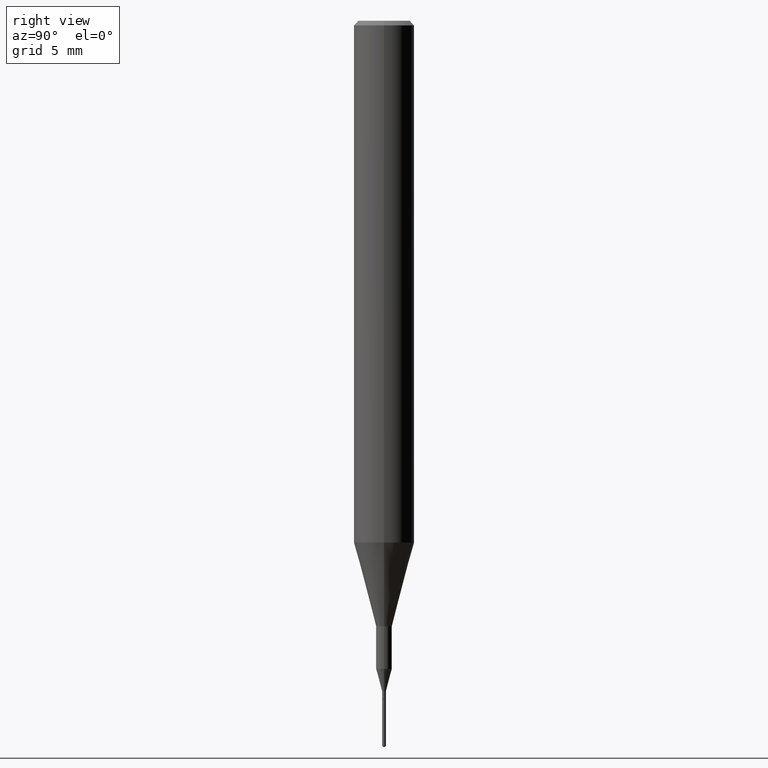
[diagram: clean part render]
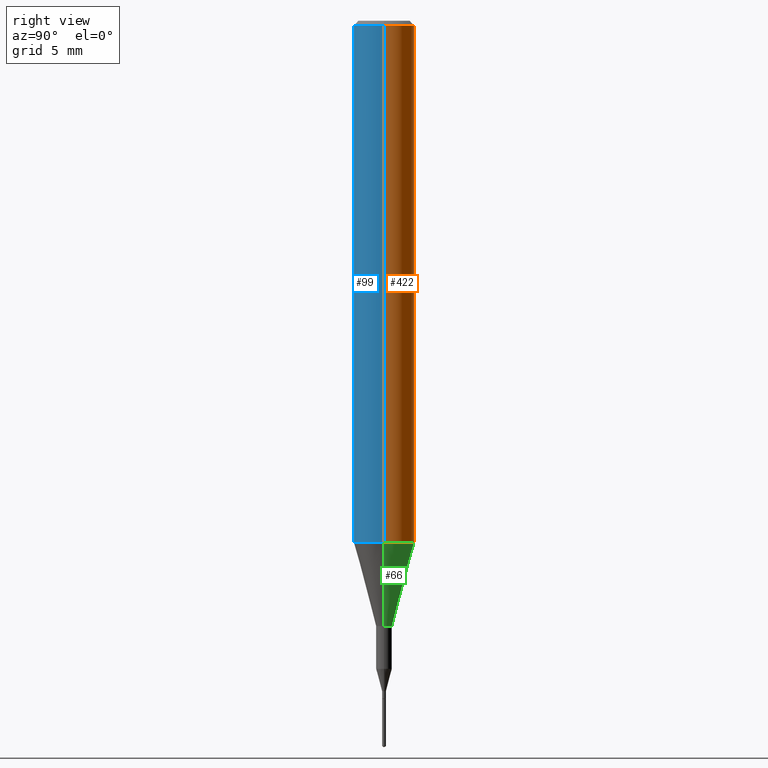
[diagram: same view with three faces highlighted in distinct colors, each labeled with its STEP entity id]
A machine part, right view with three faces highlighted in distinct colors.
Their STEP definitions:

[orange] entity #422 — the highlighted cylindrical surface (edge-blend (fillet) strip) has radius 1.5875 mm, axis along (-0, 0, 1).
#1 = VECTOR ( 'NONE', #546, 39.37007874015748143 ) ;
#2 = AXIS2_PLACEMENT_3D ( 'NONE', #293, #62, #243 ) ;
#9 = ORIENTED_EDGE ( 'NONE', *, *, #288, .T. ) ;
#16 = CARTESIAN_POINT ( 'NONE',  ( 2.292627005798581937E-31, -3.273263755165472033E-17, -0.009375000000000067307 ) ) ;
#38 = EDGE_CURVE ( 'NONE', #427, #586, #182, .T. ) ;
#52 = CARTESIAN_POINT ( 'NONE',  ( 0.06250000000000000000, -4.691678049070464390E-16, -0.009375000000000067307 ) ) ;
#62 = DIRECTION ( 'NONE',  ( -2.445468806185136597E-29, 3.491481338843145583E-15, 1.000000000000000000 ) ) ;
#73 = ORIENTED_EDGE ( 'NONE', *, *, #143, .F. ) ;
#95 = CYLINDRICAL_SURFACE ( 'NONE', #2, 0.06250000000000006939 ) ;
#109 = VERTEX_POINT ( 'NONE', #486 ) ;
#123 = CARTESIAN_POINT ( 'NONE',  ( -0.06250000000000006939, 4.440892098500631092E-16, -3.074334431409319267E-30 ) ) ;
#127 = CIRCLE ( 'NONE', #166, 0.06250000000000000000 ) ;
#141 = LINE ( 'NONE', #588, #330 ) ;
#143 = EDGE_CURVE ( 'NONE', #477, #586, #127, .T. ) ;
#146 = DIRECTION ( 'NONE',  ( 1.000000000000000000, -6.982962677686264344E-15, 0.000000000000000000 ) ) ;
#166 = AXIS2_PLACEMENT_3D ( 'NONE', #16, #302, #476 ) ;
#182 = LINE ( 'NONE', #123, #1 ) ;
#243 = DIRECTION ( 'NONE',  ( 1.000000000000000000, -6.982962677686266711E-15, 4.876176775795935793E-29 ) ) ;
#288 = EDGE_CURVE ( 'NONE', #109, #427, #572, .T. ) ;
#293 = CARTESIAN_POINT ( 'NONE',  ( 0.000000000000000000, 0.000000000000000000, 0.000000000000000000 ) ) ;
#296 = CARTESIAN_POINT ( 'NONE',  ( -0.06250000000000000000, -1.453125275228401137E-15, -0.009375000000000067307 ) ) ;
#302 = DIRECTION ( 'NONE',  ( -2.445468806185136597E-29, 3.491481338843145583E-15, 1.000000000000000000 ) ) ;
#311 = ORIENTED_EDGE ( 'NONE', *, *, #38, .T. ) ;
#326 = AXIS2_PLACEMENT_3D ( 'NONE', #396, #464, #146 ) ;
#330 = VECTOR ( 'NONE', #463, 39.37007874015748143 ) ;
#396 = CARTESIAN_POINT ( 'NONE',  ( 2.634730117954813298E-29, -3.761696332605275695E-15, -1.077392650149939346 ) ) ;
#419 = CARTESIAN_POINT ( 'NONE',  ( -0.06250000000000012490, -3.317607122755211895E-15, -1.077392650149939346 ) ) ;
#422 = ADVANCED_FACE ( 'NONE', ( #471 ), #95, .T. ) ;
#427 = VERTEX_POINT ( 'NONE', #419 ) ;
#445 = EDGE_CURVE ( 'NONE', #109, #477, #141, .T. ) ;
#463 = DIRECTION ( 'NONE',  ( -2.445468806185136877E-29, 3.491481338843145188E-15, 1.000000000000000000 ) ) ;
#464 = DIRECTION ( 'NONE',  ( -2.445468806185136597E-29, 3.491481338843145583E-15, 1.000000000000000000 ) ) ;
#471 = FACE_OUTER_BOUND ( 'NONE', #576, .T. ) ;
#476 = DIRECTION ( 'NONE',  ( 1.000000000000000000, -6.982962677686266711E-15, 0.000000000000000000 ) ) ;
#477 = VERTEX_POINT ( 'NONE', #52 ) ;
#486 = CARTESIAN_POINT ( 'NONE',  ( 0.06250000000000012490, -4.198131499960668153E-15, -1.077392650149939346 ) ) ;
#546 = DIRECTION ( 'NONE',  ( -2.445468806185136877E-29, 3.491481338843145188E-15, 1.000000000000000000 ) ) ;
#563 = ORIENTED_EDGE ( 'NONE', *, *, #445, .F. ) ;
#572 = CIRCLE ( 'NONE', #326, 0.06250000000000012490 ) ;
#576 = EDGE_LOOP ( 'NONE', ( #9, #311, #73, #563 ) ) ;
#586 = VERTEX_POINT ( 'NONE', #296 ) ;
#588 = CARTESIAN_POINT ( 'NONE',  ( 0.06250000000000006939, -4.364351673553921624E-16, 3.047610484872463374E-30 ) ) ;

[blue] entity #99 — the highlighted cylindrical surface (edge-blend (fillet) strip) has radius 1.5875 mm, axis along (-0, 0, 1).
#1 = VECTOR ( 'NONE', #546, 39.37007874015748143 ) ;
#21 = AXIS2_PLACEMENT_3D ( 'NONE', #541, #449, #402 ) ;
#38 = EDGE_CURVE ( 'NONE', #427, #586, #182, .T. ) ;
#52 = CARTESIAN_POINT ( 'NONE',  ( 0.06250000000000000000, -4.691678049070464390E-16, -0.009375000000000067307 ) ) ;
#56 = CIRCLE ( 'NONE', #21, 0.06250000000000000000 ) ;
#67 = DIRECTION ( 'NONE',  ( 1.000000000000000000, -6.982962677686266711E-15, 4.876176775795935793E-29 ) ) ;
#99 = ADVANCED_FACE ( 'NONE', ( #431 ), #426, .T. ) ;
#100 = CARTESIAN_POINT ( 'NONE',  ( 2.634730117954813298E-29, -3.761696332605275695E-15, -1.077392650149939346 ) ) ;
#104 = ORIENTED_EDGE ( 'NONE', *, *, #380, .T. ) ;
#109 = VERTEX_POINT ( 'NONE', #486 ) ;
#111 = CIRCLE ( 'NONE', #507, 0.06250000000000012490 ) ;
#123 = CARTESIAN_POINT ( 'NONE',  ( -0.06250000000000006939, 4.440892098500631092E-16, -3.074334431409319267E-30 ) ) ;
#141 = LINE ( 'NONE', #588, #330 ) ;
#152 = DIRECTION ( 'NONE',  ( -2.445468806185136597E-29, 3.491481338843145583E-15, 1.000000000000000000 ) ) ;
#182 = LINE ( 'NONE', #123, #1 ) ;
#246 = DIRECTION ( 'NONE',  ( 1.000000000000000000, -6.982962677686264344E-15, 0.000000000000000000 ) ) ;
#247 = AXIS2_PLACEMENT_3D ( 'NONE', #473, #152, #67 ) ;
#296 = CARTESIAN_POINT ( 'NONE',  ( -0.06250000000000000000, -1.453125275228401137E-15, -0.009375000000000067307 ) ) ;
#309 = EDGE_LOOP ( 'NONE', ( #491, #104, #534, #338 ) ) ;
#330 = VECTOR ( 'NONE', #463, 39.37007874015748143 ) ;
#337 = EDGE_CURVE ( 'NONE', #586, #477, #56, .T. ) ;
#338 = ORIENTED_EDGE ( 'NONE', *, *, #337, .F. ) ;
#380 = EDGE_CURVE ( 'NONE', #427, #109, #111, .T. ) ;
#402 = DIRECTION ( 'NONE',  ( 1.000000000000000000, -6.982962677686266711E-15, 0.000000000000000000 ) ) ;
#419 = CARTESIAN_POINT ( 'NONE',  ( -0.06250000000000012490, -3.317607122755211895E-15, -1.077392650149939346 ) ) ;
#426 = CYLINDRICAL_SURFACE ( 'NONE', #247, 0.06250000000000006939 ) ;
#427 = VERTEX_POINT ( 'NONE', #419 ) ;
#431 = FACE_OUTER_BOUND ( 'NONE', #309, .T. ) ;
#445 = EDGE_CURVE ( 'NONE', #109, #477, #141, .T. ) ;
#449 = DIRECTION ( 'NONE',  ( -2.445468806185136597E-29, 3.491481338843145583E-15, 1.000000000000000000 ) ) ;
#463 = DIRECTION ( 'NONE',  ( -2.445468806185136877E-29, 3.491481338843145188E-15, 1.000000000000000000 ) ) ;
#473 = CARTESIAN_POINT ( 'NONE',  ( 0.000000000000000000, 0.000000000000000000, 0.000000000000000000 ) ) ;
#477 = VERTEX_POINT ( 'NONE', #52 ) ;
#486 = CARTESIAN_POINT ( 'NONE',  ( 0.06250000000000012490, -4.198131499960668153E-15, -1.077392650149939346 ) ) ;
#491 = ORIENTED_EDGE ( 'NONE', *, *, #38, .F. ) ;
#507 = AXIS2_PLACEMENT_3D ( 'NONE', #100, #509, #246 ) ;
#509 = DIRECTION ( 'NONE',  ( -2.445468806185136597E-29, 3.491481338843145583E-15, 1.000000000000000000 ) ) ;
#534 = ORIENTED_EDGE ( 'NONE', *, *, #445, .T. ) ;
#541 = CARTESIAN_POINT ( 'NONE',  ( 2.292627005798581937E-31, -3.273263755165472033E-17, -0.009375000000000067307 ) ) ;
#546 = DIRECTION ( 'NONE',  ( -2.445468806185136877E-29, 3.491481338843145188E-15, 1.000000000000000000 ) ) ;
#586 = VERTEX_POINT ( 'NONE', #296 ) ;
#588 = CARTESIAN_POINT ( 'NONE',  ( 0.06250000000000006939, -4.364351673553921624E-16, 3.047610484872463374E-30 ) ) ;

[green] entity #66 — the highlighted conical surface has half-angle 15 deg.
#25 = ORIENTED_EDGE ( 'NONE', *, *, #524, .T. ) ;
#66 = ADVANCED_FACE ( 'NONE', ( #126 ), #552, .T. ) ;
#76 = LINE ( 'NONE', #577, #113 ) ;
#82 = EDGE_LOOP ( 'NONE', ( #487, #25, #480, #429 ) ) ;
#92 = CARTESIAN_POINT ( 'NONE',  ( 2.634730117954813298E-29, -3.761696332605275695E-15, -1.077392650149939346 ) ) ;
#109 = VERTEX_POINT ( 'NONE', #486 ) ;
#113 = VECTOR ( 'NONE', #172, 39.37007874015747433 ) ;
#126 = FACE_OUTER_BOUND ( 'NONE', #82, .T. ) ;
#146 = DIRECTION ( 'NONE',  ( 1.000000000000000000, -6.982962677686264344E-15, 0.000000000000000000 ) ) ;
#170 = CARTESIAN_POINT ( 'NONE',  ( 0.01624999999999999709, -4.477824817066334148E-15, -1.250000000000000000 ) ) ;
#172 = DIRECTION ( 'NONE',  ( -0.2588190451025214611, 5.211531920934551042E-15, 0.9659258262890682012 ) ) ;
#180 = LINE ( 'NONE', #238, #198 ) ;
#198 = VECTOR ( 'NONE', #505, 39.37007874015747433 ) ;
#202 = CARTESIAN_POINT ( 'NONE',  ( 3.056836007731421306E-29, -4.364351673553932471E-15, -1.250000000000000000 ) ) ;
#238 = CARTESIAN_POINT ( 'NONE',  ( 0.06250000000000012490, -4.198131499960668153E-15, -1.077392650149939346 ) ) ;
#252 = VERTEX_POINT ( 'NONE', #170 ) ;
#257 = AXIS2_PLACEMENT_3D ( 'NONE', #92, #316, #492 ) ;
#288 = EDGE_CURVE ( 'NONE', #109, #427, #572, .T. ) ;
#300 = EDGE_CURVE ( 'NONE', #252, #109, #180, .T. ) ;
#312 = DIRECTION ( 'NONE',  ( 1.000000000000000000, -6.982962677686288799E-15, 0.000000000000000000 ) ) ;
#316 = DIRECTION ( 'NONE',  ( -2.445468806185136597E-29, 3.491481338843145583E-15, 1.000000000000000000 ) ) ;
#326 = AXIS2_PLACEMENT_3D ( 'NONE', #396, #464, #146 ) ;
#396 = CARTESIAN_POINT ( 'NONE',  ( 2.634730117954813298E-29, -3.761696332605275695E-15, -1.077392650149939346 ) ) ;
#419 = CARTESIAN_POINT ( 'NONE',  ( -0.06250000000000012490, -3.317607122755211895E-15, -1.077392650149939346 ) ) ;
#427 = VERTEX_POINT ( 'NONE', #419 ) ;
#429 = ORIENTED_EDGE ( 'NONE', *, *, #300, .F. ) ;
#464 = DIRECTION ( 'NONE',  ( -2.445468806185136597E-29, 3.491481338843145583E-15, 1.000000000000000000 ) ) ;
#467 = CIRCLE ( 'NONE', #481, 0.01624999999999999709 ) ;
#480 = ORIENTED_EDGE ( 'NONE', *, *, #288, .F. ) ;
#481 = AXIS2_PLACEMENT_3D ( 'NONE', #202, #528, #312 ) ;
#482 = CARTESIAN_POINT ( 'NONE',  ( -0.01624999999999999709, -4.403030004465308577E-15, -1.250000000000000000 ) ) ;
#486 = CARTESIAN_POINT ( 'NONE',  ( 0.06250000000000012490, -4.198131499960668153E-15, -1.077392650149939346 ) ) ;
#487 = ORIENTED_EDGE ( 'NONE', *, *, #544, .T. ) ;
#492 = DIRECTION ( 'NONE',  ( 1.000000000000000000, -6.982962677686264344E-15, 0.000000000000000000 ) ) ;
#505 = DIRECTION ( 'NONE',  ( 0.2588190451025214611, 1.565188264969621573E-15, 0.9659258262890682012 ) ) ;
#524 = EDGE_CURVE ( 'NONE', #530, #427, #76, .T. ) ;
#528 = DIRECTION ( 'NONE',  ( -2.445468806185136597E-29, 3.491481338843145583E-15, 1.000000000000000000 ) ) ;
#530 = VERTEX_POINT ( 'NONE', #482 ) ;
#544 = EDGE_CURVE ( 'NONE', #252, #530, #467, .T. ) ;
#552 = CONICAL_SURFACE ( 'NONE', #257, 0.06250000000000012490, 0.2617993877991501295 ) ;
#572 = CIRCLE ( 'NONE', #326, 0.06250000000000012490 ) ;
#577 = CARTESIAN_POINT ( 'NONE',  ( -0.06250000000000012490, -3.317607122755211895E-15, -1.077392650149939346 ) ) ;